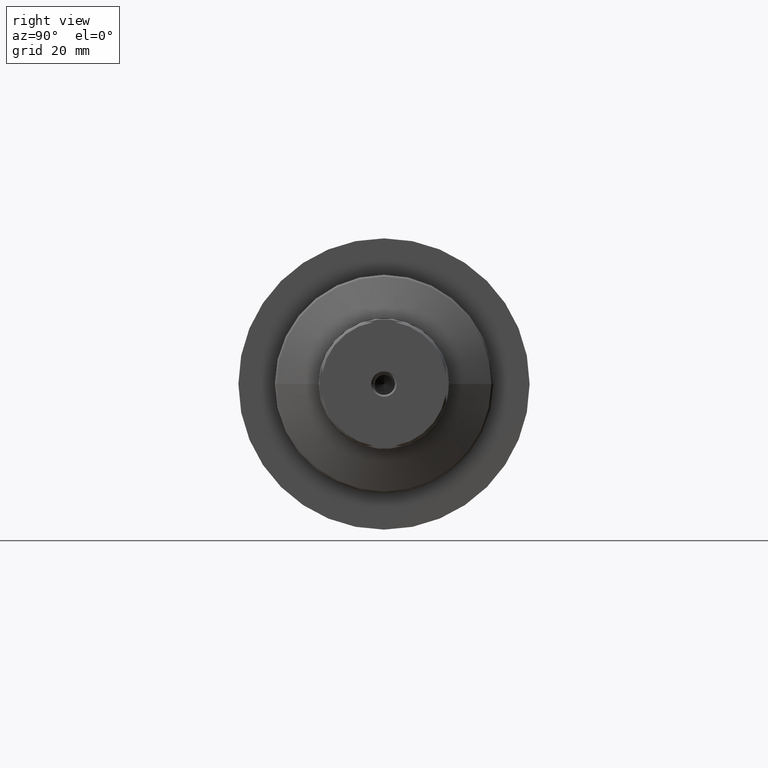
[diagram: clean part render]
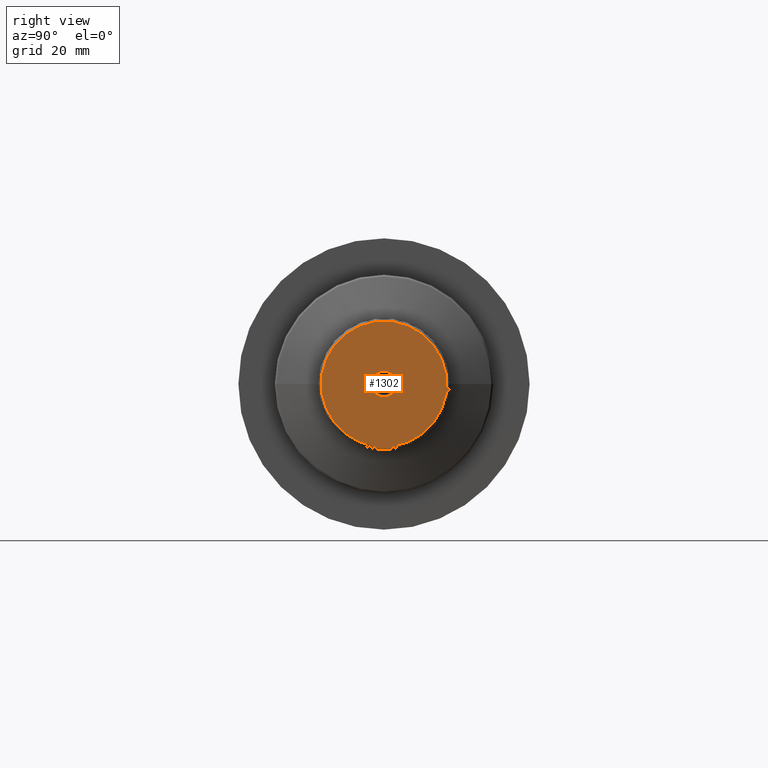
[diagram: same view with one face highlighted and labeled with its STEP entity id]
A machine part, right view. The second image highlights one B-rep face of the part: STEP entity #1302.
In plain terms, the highlighted planar face has unit normal (-1, -0, 0).
Its self-contained STEP definition (entity closure, byte-faithful):
#7 = VECTOR ( 'NONE', #701, 1000.000000000000000 ) ;
#32 = CIRCLE ( 'NONE', #1895, 17.25000000000003908 ) ;
#34 = DIRECTION ( 'NONE',  ( 0.000000000000000000, -1.000000000000000000, 0.000000000000000000 ) ) ;
#57 = VERTEX_POINT ( 'NONE', #2260 ) ;
#117 = EDGE_CURVE ( 'NONE', #57, #1947, #1060, .T. ) ;
#132 = ORIENTED_EDGE ( 'NONE', *, *, #781, .T. ) ;
#157 = CIRCLE ( 'NONE', #453, 3.500000000000652811 ) ;
#179 = DIRECTION ( 'NONE',  ( -1.000000000000000000, -1.069542322069065801E-17, -0.000000000000000000 ) ) ;
#180 = ORIENTED_EDGE ( 'NONE', *, *, #513, .T. ) ;
#198 = CARTESIAN_POINT ( 'NONE',  ( 165.9999999999997442, -17.00000000000275335, -5.105144464165531915 ) ) ;
#216 = DIRECTION ( 'NONE',  ( 1.000000000000000000, 1.069542322069065801E-17, 0.000000000000000000 ) ) ;
#217 = LINE ( 'NONE', #1139, #1052 ) ;
#320 = DIRECTION ( 'NONE',  ( 1.069542322069065801E-17, -1.000000000000000000, 0.000000000000000000 ) ) ;
#379 = VERTEX_POINT ( 'NONE', #1923 ) ;
#386 = DIRECTION ( 'NONE',  ( 0.000000000000000000, -1.000000000000000000, 0.000000000000000000 ) ) ;
#423 = ORIENTED_EDGE ( 'NONE', *, *, #2079, .F. ) ;
#453 = AXIS2_PLACEMENT_3D ( 'NONE', #780, #790, #1811 ) ;
#467 = CARTESIAN_POINT ( 'NONE',  ( 166.0000000000000568, 2.926174977679684819, -16.99999999999999289 ) ) ;
#471 = ORIENTED_EDGE ( 'NONE', *, *, #2067, .T. ) ;
#485 = FACE_OUTER_BOUND ( 'NONE', #968, .T. ) ;
#513 = EDGE_CURVE ( 'NONE', #57, #2257, #1186, .T. ) ;
#538 = CARTESIAN_POINT ( 'NONE',  ( 166.0000000000000568, 2.926174977679903311, 17.00000000000000000 ) ) ;
#551 = CARTESIAN_POINT ( 'NONE',  ( 165.9999999999999147, -5.105144464168279939, 17.00000000000000000 ) ) ;
#585 = DIRECTION ( 'NONE',  ( 0.000000000000000000, -3.397990964119416901E-16, -1.000000000000000000 ) ) ;
#632 = CARTESIAN_POINT ( 'NONE',  ( 166.0000000000000000, 1.775440254634649393E-15, 0.000000000000000000 ) ) ;
#645 = CIRCLE ( 'NONE', #2275, 17.24999999999996092 ) ;
#690 = CARTESIAN_POINT ( 'NONE',  ( 166.0000000000000000, -17.00000000000274625, -2.926174977664149246 ) ) ;
#701 = DIRECTION ( 'NONE',  ( 0.000000000000000000, 0.000000000000000000, 1.000000000000000000 ) ) ;
#732 = ORIENTED_EDGE ( 'NONE', *, *, #117, .F. ) ;
#766 = CIRCLE ( 'NONE', #1520, 17.25000000000000000 ) ;
#780 = CARTESIAN_POINT ( 'NONE',  ( 166.0000000000000000, -2.751059567157103127E-12, 0.000000000000000000 ) ) ;
#781 = EDGE_CURVE ( 'NONE', #2238, #1759, #32, .T. ) ;
#790 = DIRECTION ( 'NONE',  ( -1.000000000000000000, -1.069542322069065801E-17, -0.000000000000000000 ) ) ;
#828 = AXIS2_PLACEMENT_3D ( 'NONE', #1430, #179, #386 ) ;
#843 = VERTEX_POINT ( 'NONE', #1977 ) ;
#868 = EDGE_CURVE ( 'NONE', #1516, #843, #1787, .T. ) ;
#929 = DIRECTION ( 'NONE',  ( 1.000000000000000000, 1.069542322069065801E-17, 0.000000000000000000 ) ) ;
#968 = EDGE_LOOP ( 'NONE', ( #1775, #1600, #423, #1979, #732, #180, #2207, #132 ) ) ;
#994 = CARTESIAN_POINT ( 'NONE',  ( 166.0000000000000000, 1.775440254634649393E-15, 0.000000000000000000 ) ) ;
#996 = CARTESIAN_POINT ( 'NONE',  ( 166.0000000000000000, 1.775440254634649393E-15, 0.000000000000000000 ) ) ;
#1001 = EDGE_CURVE ( 'NONE', #2174, #379, #645, .T. ) ;
#1006 = DIRECTION ( 'NONE',  ( 0.000000000000000000, -1.000000000000000000, 0.000000000000000000 ) ) ;
#1021 = CARTESIAN_POINT ( 'NONE',  ( 165.9999999999999432, -2.926174977680131573, -17.00000000000000000 ) ) ;
#1052 = VECTOR ( 'NONE', #585, 1000.000000000000000 ) ;
#1060 = LINE ( 'NONE', #551, #1364 ) ;
#1068 = DIRECTION ( 'NONE',  ( 1.631035662777319955E-14, 1.000000000000000000, 0.000000000000000000 ) ) ;
#1139 = CARTESIAN_POINT ( 'NONE',  ( 166.0000000000002842, 16.99999999999725375, 5.105144464165529250 ) ) ;
#1182 = DIRECTION ( 'NONE',  ( -1.631035662777319955E-14, -1.000000000000000000, 0.000000000000000000 ) ) ;
#1186 = CIRCLE ( 'NONE', #1477, 17.24999999999998579 ) ;
#1187 = FACE_BOUND ( 'NONE', #2095, .T. ) ;
#1221 = VERTEX_POINT ( 'NONE', #1883 ) ;
#1235 = VECTOR ( 'NONE', #1182, 1000.000000000000000 ) ;
#1243 = EDGE_CURVE ( 'NONE', #1221, #1947, #766, .T. ) ;
#1297 = AXIS2_PLACEMENT_3D ( 'NONE', #1899, #1915, #320 ) ;
#1302 = ADVANCED_FACE ( 'NONE', ( #1187, #485 ), #1561, .F. ) ;
#1364 = VECTOR ( 'NONE', #1068, 1000.000000000000000 ) ;
#1430 = CARTESIAN_POINT ( 'NONE',  ( 166.0000000000000000, -2.751059567157103127E-12, 0.000000000000000000 ) ) ;
#1433 = CARTESIAN_POINT ( 'NONE',  ( 165.9999999999997442, -17.00000000000275335, 2.926174977663820620 ) ) ;
#1467 = DIRECTION ( 'NONE',  ( 0.000000000000000000, -1.000000000000000000, 3.552713678800500929E-15 ) ) ;
#1477 = AXIS2_PLACEMENT_3D ( 'NONE', #996, #216, #1467 ) ;
#1516 = VERTEX_POINT ( 'NONE', #2202 ) ;
#1520 = AXIS2_PLACEMENT_3D ( 'NONE', #994, #1714, #1006 ) ;
#1561 = PLANE ( 'NONE',  #1297 ) ;
#1600 = ORIENTED_EDGE ( 'NONE', *, *, #1001, .T. ) ;
#1643 = LINE ( 'NONE', #1877, #1235 ) ;
#1707 = ORIENTED_EDGE ( 'NONE', *, *, #868, .T. ) ;
#1714 = DIRECTION ( 'NONE',  ( 1.000000000000000000, 1.069542322069065801E-17, 0.000000000000000000 ) ) ;
#1759 = VERTEX_POINT ( 'NONE', #1021 ) ;
#1775 = ORIENTED_EDGE ( 'NONE', *, *, #2108, .F. ) ;
#1787 = CIRCLE ( 'NONE', #828, 3.500000000000652811 ) ;
#1811 = DIRECTION ( 'NONE',  ( 0.000000000000000000, -1.000000000000000000, 0.000000000000000000 ) ) ;
#1841 = DIRECTION ( 'NONE',  ( 0.000000000000000000, -1.000000000000000000, 0.000000000000000000 ) ) ;
#1877 = CARTESIAN_POINT ( 'NONE',  ( 166.0000000000000853, 5.105144464162780338, -17.00000000000000000 ) ) ;
#1883 = CARTESIAN_POINT ( 'NONE',  ( 166.0000000000000000, 16.99999999999724665, 2.926174977695906065 ) ) ;
#1895 = AXIS2_PLACEMENT_3D ( 'NONE', #2140, #929, #34 ) ;
#1899 = CARTESIAN_POINT ( 'NONE',  ( 166.0000000000000000, -8.673617379884035472E-16, 0.000000000000000000 ) ) ;
#1915 = DIRECTION ( 'NONE',  ( -1.000000000000000000, -1.069542322069065801E-17, 0.000000000000000000 ) ) ;
#1923 = CARTESIAN_POINT ( 'NONE',  ( 166.0000000000002842, 16.99999999999725020, -2.926174977695644941 ) ) ;
#1947 = VERTEX_POINT ( 'NONE', #538 ) ;
#1977 = CARTESIAN_POINT ( 'NONE',  ( 166.0000000000000000, -3.500000000003525624, 4.286263797016684214E-16 ) ) ;
#1979 = ORIENTED_EDGE ( 'NONE', *, *, #1243, .T. ) ;
#2054 = DIRECTION ( 'NONE',  ( 1.000000000000000000, 1.069542322069065801E-17, 0.000000000000000000 ) ) ;
#2067 = EDGE_CURVE ( 'NONE', #843, #1516, #157, .T. ) ;
#2079 = EDGE_CURVE ( 'NONE', #1221, #379, #217, .T. ) ;
#2095 = EDGE_LOOP ( 'NONE', ( #1707, #471 ) ) ;
#2108 = EDGE_CURVE ( 'NONE', #2174, #1759, #1643, .T. ) ;
#2140 = CARTESIAN_POINT ( 'NONE',  ( 166.0000000000000000, 1.775440254634649393E-15, 0.000000000000000000 ) ) ;
#2174 = VERTEX_POINT ( 'NONE', #467 ) ;
#2202 = CARTESIAN_POINT ( 'NONE',  ( 166.0000000000000000, 3.499999999997895905, 0.000000000000000000 ) ) ;
#2207 = ORIENTED_EDGE ( 'NONE', *, *, #2285, .F. ) ;
#2238 = VERTEX_POINT ( 'NONE', #690 ) ;
#2257 = VERTEX_POINT ( 'NONE', #1433 ) ;
#2260 = CARTESIAN_POINT ( 'NONE',  ( 165.9999999999999432, -2.926174977679848244, 16.99999999999999289 ) ) ;
#2275 = AXIS2_PLACEMENT_3D ( 'NONE', #632, #2054, #1841 ) ;
#2285 = EDGE_CURVE ( 'NONE', #2238, #2257, #2296, .T. ) ;
#2296 = LINE ( 'NONE', #198, #7 ) ;